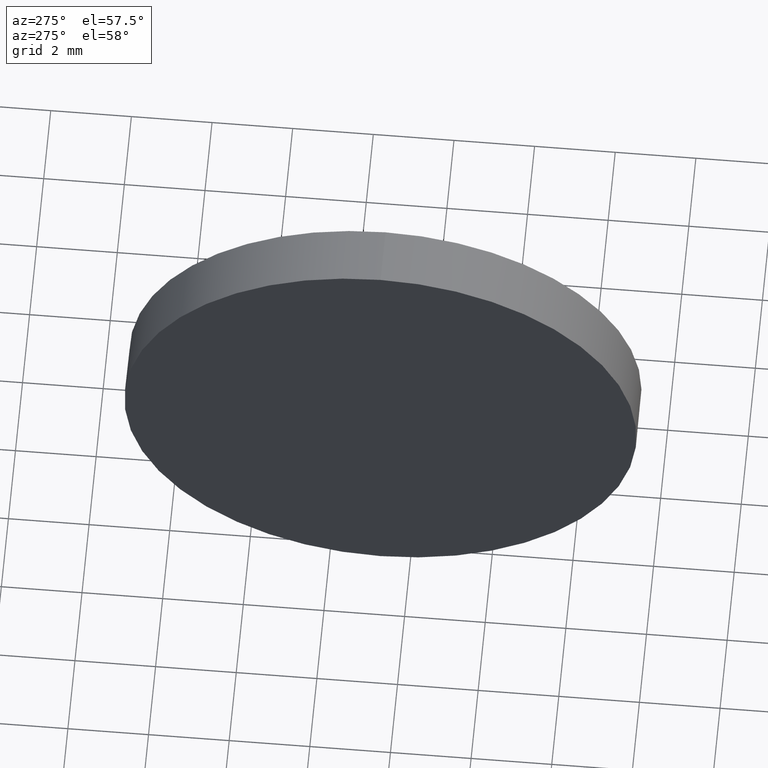
[diagram: clean part render]
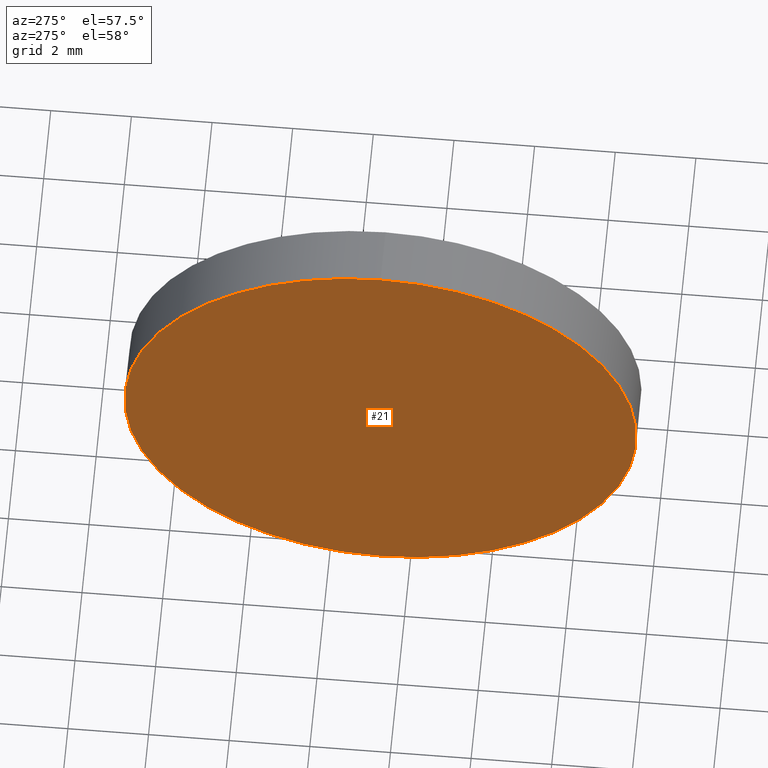
[diagram: same view with one face highlighted and labeled with its STEP entity id]
A machine part, auxiliary view. The second image highlights one B-rep face of the part: STEP entity #21.
In plain terms, the highlighted planar face has unit normal (1, 0, 0).
Its self-contained STEP definition (entity closure, byte-faithful):
#9 = ORIENTED_EDGE ( 'NONE', *, *, #105, .T. ) ;
#21 = ADVANCED_FACE ( 'NONE', ( #101 ), #139, .F. ) ;
#25 = DIRECTION ( 'NONE',  ( 0.0000000000000000000, 0.0000000000000000000, 1.000000000000000000 ) ) ;
#31 = CIRCLE ( 'NONE', #158, 6.350000000000001400 ) ;
#33 = EDGE_LOOP ( 'NONE', ( #9, #89 ) ) ;
#52 = EDGE_CURVE ( 'NONE', #160, #59, #31, .T. ) ;
#55 = CARTESIAN_POINT ( 'NONE',  ( 195.5368600580019300, 18.73237217798914900, 6.350000000000001400 ) ) ;
#59 = VERTEX_POINT ( 'NONE', #55 ) ;
#67 = CARTESIAN_POINT ( 'NONE',  ( 195.5368600580019300, 18.73237217798914900, 0.0000000000000000000 ) ) ;
#72 = DIRECTION ( 'NONE',  ( 0.0000000000000000000, 0.0000000000000000000, 1.000000000000000000 ) ) ;
#81 = DIRECTION ( 'NONE',  ( 0.0000000000000000000, 0.0000000000000000000, -1.000000000000000000 ) ) ;
#85 = DIRECTION ( 'NONE',  ( -1.000000000000000000, -0.0000000000000000000, -0.0000000000000000000 ) ) ;
#89 = ORIENTED_EDGE ( 'NONE', *, *, #52, .T. ) ;
#101 = FACE_OUTER_BOUND ( 'NONE', #33, .T. ) ;
#105 = EDGE_CURVE ( 'NONE', #59, #160, #170, .T. ) ;
#126 = CARTESIAN_POINT ( 'NONE',  ( 195.5368600580019300, 18.73237217798914900, -6.350000000000001400 ) ) ;
#139 = PLANE ( 'NONE',  #154 ) ;
#142 = CARTESIAN_POINT ( 'NONE',  ( 195.5368600580019300, 18.73237217798914900, 0.0000000000000000000 ) ) ;
#151 = AXIS2_PLACEMENT_3D ( 'NONE', #142, #85, #25 ) ;
#154 = AXIS2_PLACEMENT_3D ( 'NONE', #67, #156, #81 ) ;
#156 = DIRECTION ( 'NONE',  ( 1.000000000000000000, 0.0000000000000000000, 0.0000000000000000000 ) ) ;
#158 = AXIS2_PLACEMENT_3D ( 'NONE', #162, #175, #72 ) ;
#160 = VERTEX_POINT ( 'NONE', #126 ) ;
#162 = CARTESIAN_POINT ( 'NONE',  ( 195.5368600580019300, 18.73237217798914900, 0.0000000000000000000 ) ) ;
#170 = CIRCLE ( 'NONE', #151, 6.350000000000001400 ) ;
#175 = DIRECTION ( 'NONE',  ( -1.000000000000000000, -0.0000000000000000000, -0.0000000000000000000 ) ) ;